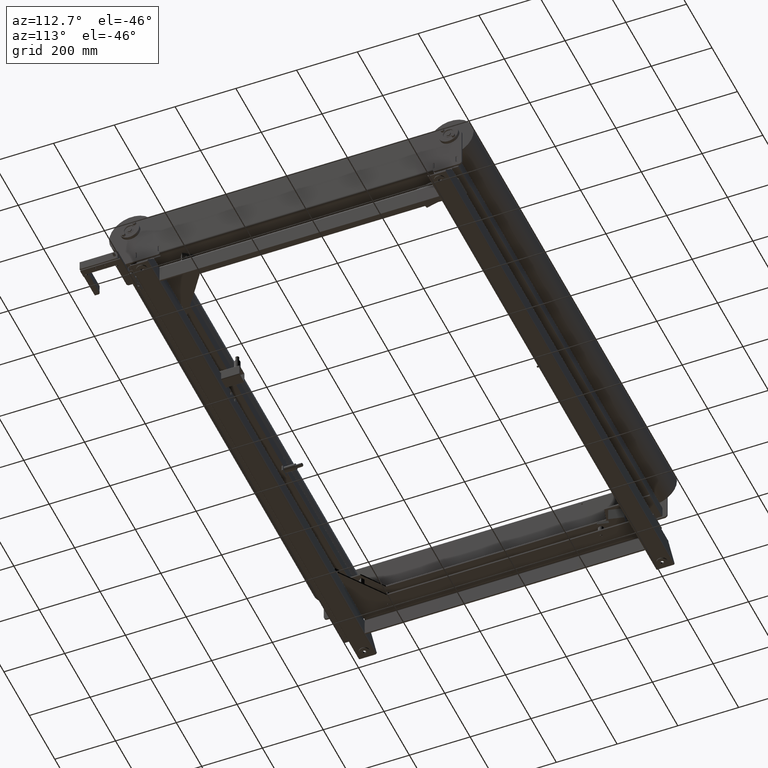
[diagram: clean part render]
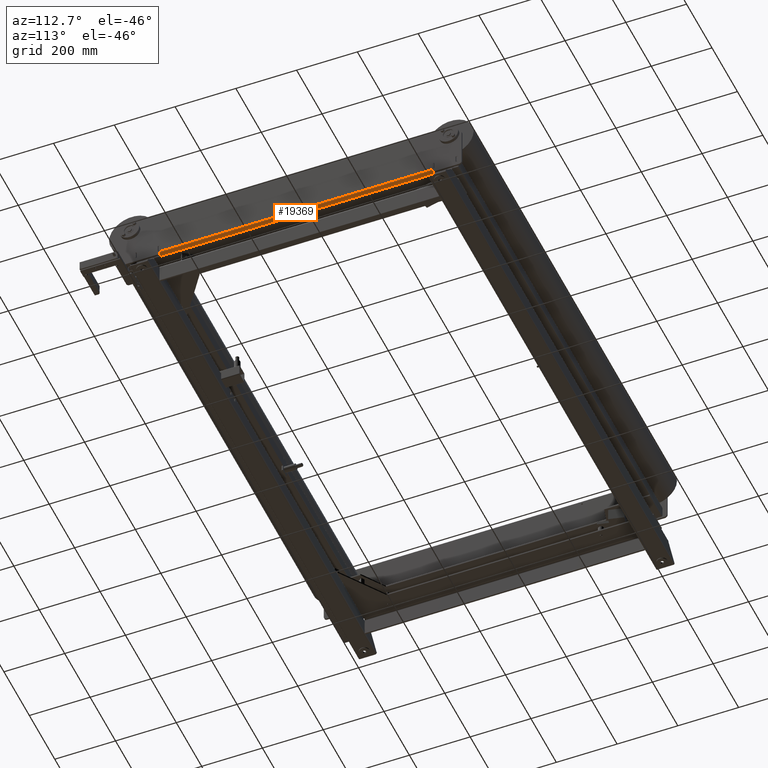
[diagram: same view with one face highlighted and labeled with its STEP entity id]
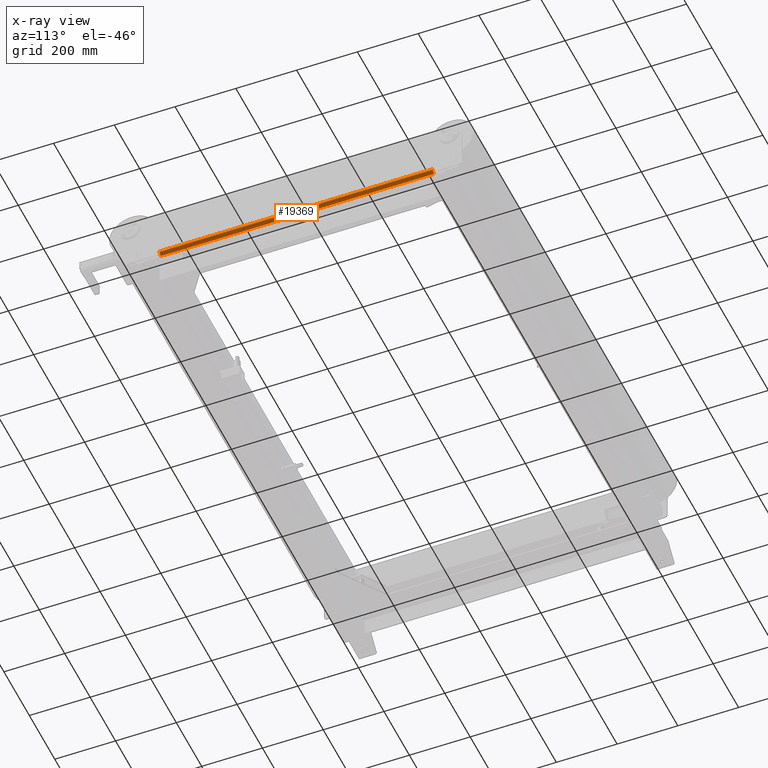
[diagram: x-ray of the same camera — body ghosted, the highlighted face saturated]
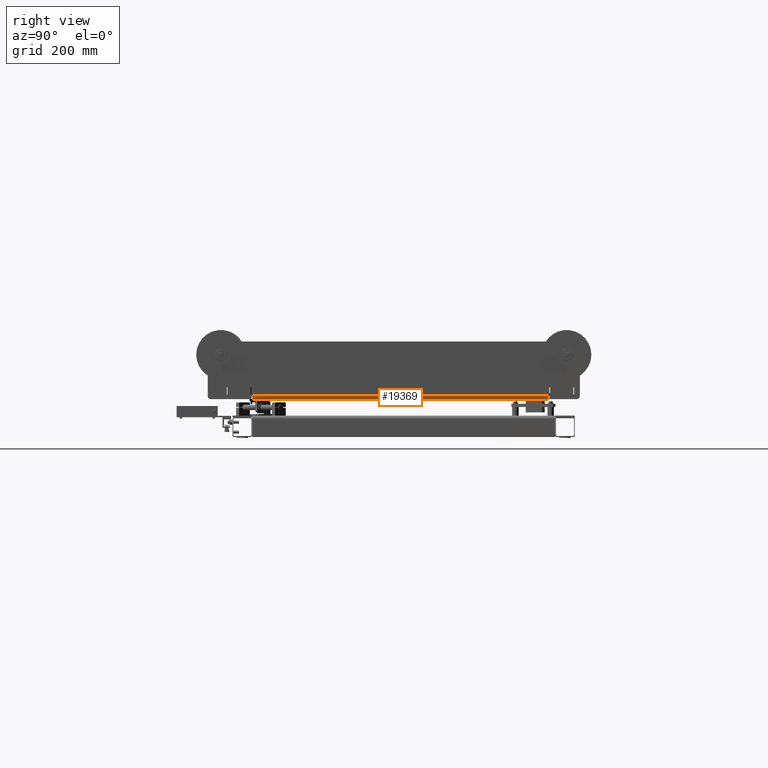
[diagram: same view with one face highlighted and labeled with its STEP entity id]
A machine part, auxiliary view. The second image highlights one B-rep face of the part: STEP entity #19369.
The next image is the same camera in x-ray: the body ghosted, the highlighted face saturated — about 0% of this face is hidden behind the body in this view.
A second angle (right view) of the same face is appended — the face is thin or edge-on in the first view.
In plain terms, the highlighted cylindrical surface (edge-blend (fillet) strip) has radius 10 mm, axis along (0, -1, 0).
Its self-contained STEP definition (entity closure, byte-faithful):
#19328=CARTESIAN_POINT('',(-50.0,-182.500000000000060,-9.0));
#19329=DIRECTION('',(0.0,1.0,0.0));
#19330=DIRECTION('',(-0.707106781186547,0.0,0.707106781186547));
#19331=AXIS2_PLACEMENT_3D('',#19328,#19329,#19330);
#19332=CYLINDRICAL_SURFACE('',#19331,10.0);
#19333=CARTESIAN_POINT('',(-50.000000000000121,79.650000000000006,1.000000000000000));
#19334=VERTEX_POINT('',#19333);
#19335=CARTESIAN_POINT('',(-60.000000000000021,79.650000000000006,-9.0));
#19336=VERTEX_POINT('',#19335);
#19337=CARTESIAN_POINT('',(-50.0,79.650000000000034,-9.0));
#19338=DIRECTION('',(0.0,-1.000000000000000,0.0));
#19339=DIRECTION('',(-0.707106781186547,0.0,0.707106781186547));
#19340=AXIS2_PLACEMENT_3D('',#19337,#19338,#19339);
#19341=CIRCLE('',#19340,9.999999999999998);
#19342=EDGE_CURVE('',#19334,#19336,#19341,.T.);
#19343=ORIENTED_EDGE('',*,*,#19342,.T.);
#19344=CARTESIAN_POINT('',(-60.000000000000121,-819.649999999999980,-9.0));
#19345=VERTEX_POINT('',#19344);
#19346=CARTESIAN_POINT('',(-60.000000000000021,79.650000000000006,-9.0));
#19347=DIRECTION('',(0.0,-1.0,0.0));
#19348=VECTOR('',#19347,899.299999999999950);
#19349=LINE('',#19346,#19348);
#19350=EDGE_CURVE('',#19336,#19345,#19349,.T.);
#19351=ORIENTED_EDGE('',*,*,#19350,.T.);
#19352=CARTESIAN_POINT('',(-50.000000000000121,-819.649999999999980,1.000000000000000));
#19353=VERTEX_POINT('',#19352);
#19354=CARTESIAN_POINT('',(-50.0,-819.649999999999860,-9.0));
#19355=DIRECTION('',(0.0,1.000000000000000,0.0));
#19356=DIRECTION('',(-0.707106781186547,0.0,0.707106781186547));
#19357=AXIS2_PLACEMENT_3D('',#19354,#19355,#19356);
#19358=CIRCLE('',#19357,9.999999999999998);
#19359=EDGE_CURVE('',#19345,#19353,#19358,.T.);
#19360=ORIENTED_EDGE('',*,*,#19359,.T.);
#19361=CARTESIAN_POINT('',(-50.000000000000121,-819.649999999999980,1.000000000000000));
#19362=DIRECTION('',(0.0,1.0,0.0));
#19363=VECTOR('',#19362,899.299999999999950);
#19364=LINE('',#19361,#19363);
#19365=EDGE_CURVE('',#19353,#19334,#19364,.T.);
#19366=ORIENTED_EDGE('',*,*,#19365,.T.);
#19367=EDGE_LOOP('',(#19343,#19351,#19360,#19366));
#19368=FACE_OUTER_BOUND('',#19367,.T.);
#19369=ADVANCED_FACE('',(#19368),#19332,.T.);